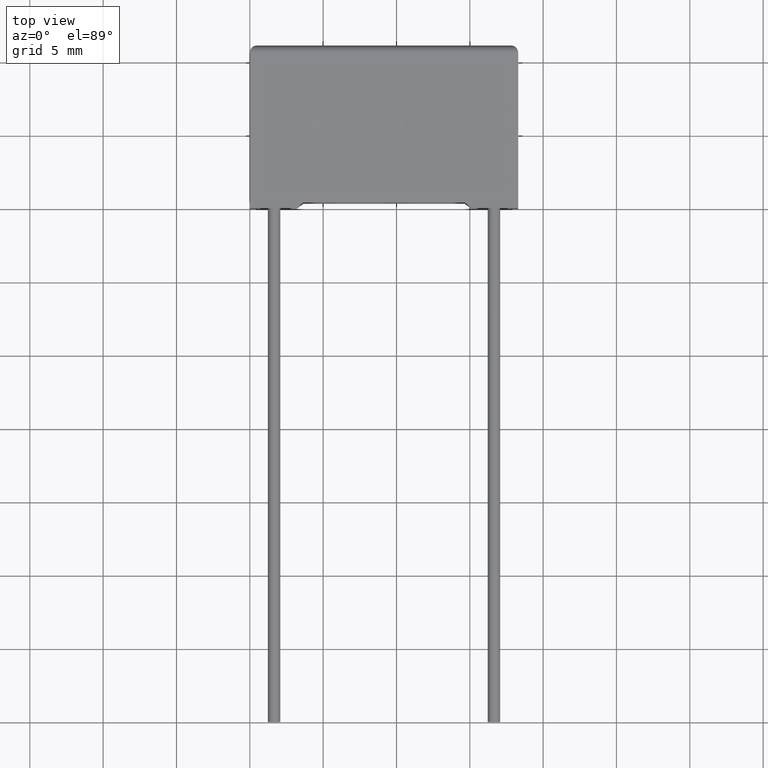
[diagram: clean part render]
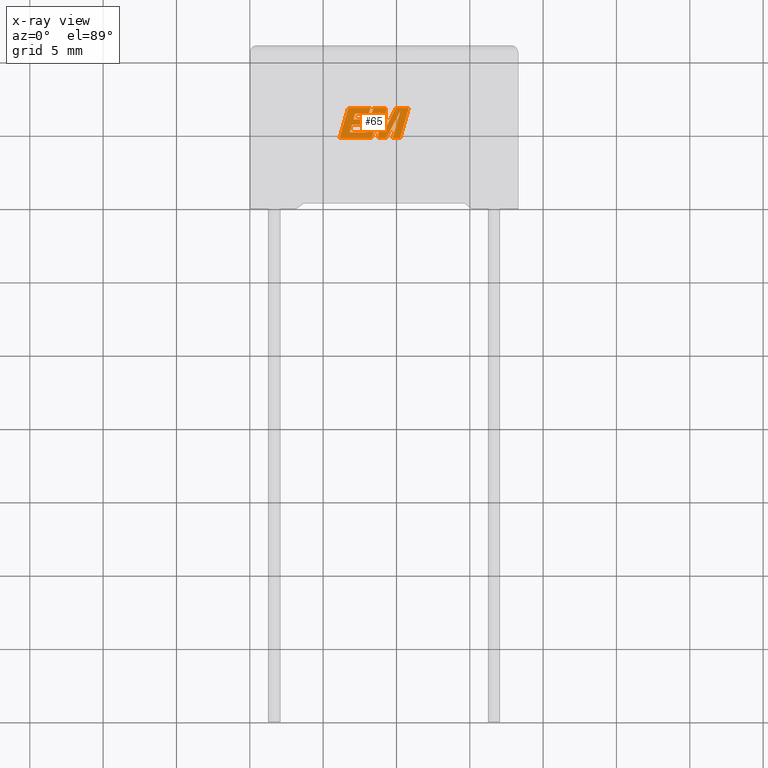
[diagram: x-ray — body ghosted, one internal face saturated and labeled with its STEP entity id]
A machine part, top view, then the same camera in x-ray: the body is ghosted and one INTERNAL B-rep face — a face not visible from any outside direction — is saturated and labeled: STEP entity #65.
In plain terms, the highlighted planar face has unit normal (0, 0, -1).
Its self-contained STEP definition (entity closure, byte-faithful):
#6 = DIRECTION ( 'NONE',  ( -1.000000000000000000, 0.000000000000000000, 0.000000000000000000 ) ) ;
#9 = VERTEX_POINT ( 'NONE', #77 ) ;
#30 = VECTOR ( 'NONE', #3023, 1000.000000000000000 ) ;
#35 = DIRECTION ( 'NONE',  ( 1.000000000000000000, 0.000000000000000000, 0.000000000000000000 ) ) ;
#36 = EDGE_CURVE ( 'NONE', #1682, #1478, #1690, .T. ) ;
#43 = CARTESIAN_POINT ( 'NONE',  ( 9.947927223384223083, 6.826083738474082452, 5.200000000000000178 ) ) ;
#54 = EDGE_CURVE ( 'NONE', #306, #1963, #288, .T. ) ;
#65 = ADVANCED_FACE ( 'NONE', ( #2878 ), #2023, .T. ) ;
#66 = CARTESIAN_POINT ( 'NONE',  ( 8.112293221804671717, 6.435923639161655885, 5.200000000000000178 ) ) ;
#77 = CARTESIAN_POINT ( 'NONE',  ( 9.221647422191399102, 5.361713331603874089, 5.200000000000000178 ) ) ;
#121 = CARTESIAN_POINT ( 'NONE',  ( 8.748873504561524683, 4.776329999999935794, 5.200000000000000178 ) ) ;
#142 = CARTESIAN_POINT ( 'NONE',  ( 7.947244424658283179, 6.054669767896145416, 5.200000000000000178 ) ) ;
#178 = LINE ( 'NONE', #231, #1182 ) ;
#206 = VERTEX_POINT ( 'NONE', #2765 ) ;
#231 = CARTESIAN_POINT ( 'NONE',  ( 8.327195703898469858, 4.776329999999935794, 5.200000000000000178 ) ) ;
#251 = ORIENTED_EDGE ( 'NONE', *, *, #909, .F. ) ;
#252 = LINE ( 'NONE', #1232, #717 ) ;
#288 = LINE ( 'NONE', #1736, #1444 ) ;
#292 = CARTESIAN_POINT ( 'NONE',  ( 7.839011005306755209, 5.675740615357458552, 5.200000000000000178 ) ) ;
#306 = VERTEX_POINT ( 'NONE', #2783 ) ;
#315 = CARTESIAN_POINT ( 'NONE',  ( 6.708817521994718369, 6.826083738474082452, 5.200000000000000178 ) ) ;
#321 = DIRECTION ( 'NONE',  ( 0.2732148821746286371, 0.9619530280415482526, 0.000000000000000000 ) ) ;
#322 = EDGE_CURVE ( 'NONE', #1281, #2127, #677, .T. ) ;
#328 = ORIENTED_EDGE ( 'NONE', *, *, #1053, .F. ) ;
#363 = CARTESIAN_POINT ( 'NONE',  ( 8.112293221804671717, 6.435923639161655885, 5.200000000000000178 ) ) ;
#372 = EDGE_CURVE ( 'NONE', #1933, #2138, #252, .T. ) ;
#377 = LINE ( 'NONE', #1096, #2348 ) ;
#403 = CARTESIAN_POINT ( 'NONE',  ( 6.959357382888240018, 5.675740615357458552, 5.200000000000000178 ) ) ;
#405 = EDGE_CURVE ( 'NONE', #9, #700, #1247, .T. ) ;
#410 = ORIENTED_EDGE ( 'NONE', *, *, #2947, .F. ) ;
#443 = EDGE_CURVE ( 'NONE', #1129, #2150, #519, .T. ) ;
#444 = VERTEX_POINT ( 'NONE', #1483 ) ;
#446 = CARTESIAN_POINT ( 'NONE',  ( 7.178404472403894232, 6.435923639161655885, 5.200000000000000178 ) ) ;
#480 = ORIENTED_EDGE ( 'NONE', *, *, #2207, .F. ) ;
#483 = DIRECTION ( 'NONE',  ( 0.2763139702539113007, 0.9610674221107073922, 0.000000000000000000 ) ) ;
#486 = CARTESIAN_POINT ( 'NONE',  ( 9.300475089700450226, 6.826083738474082452, 5.200000000000000178 ) ) ;
#490 = ORIENTED_EDGE ( 'NONE', *, *, #443, .F. ) ;
#519 = LINE ( 'NONE', #2845, #2821 ) ;
#534 = VECTOR ( 'NONE', #6, 1000.000000000000000 ) ;
#558 = AXIS2_PLACEMENT_3D ( 'NONE', #2471, #2952, #1311 ) ;
#563 = ORIENTED_EDGE ( 'NONE', *, *, #3060, .F. ) ;
#610 = VECTOR ( 'NONE', #2314, 1000.000000000000227 ) ;
#617 = VECTOR ( 'NONE', #321, 1000.000000000000227 ) ;
#635 = VECTOR ( 'NONE', #1730, 999.9999999999998863 ) ;
#675 = CARTESIAN_POINT ( 'NONE',  ( 8.748873504561524683, 4.776329999999935794, 5.200000000000000178 ) ) ;
#677 = LINE ( 'NONE', #874, #610 ) ;
#687 = VECTOR ( 'NONE', #2544, 1000.000000000000227 ) ;
#690 = EDGE_CURVE ( 'NONE', #2558, #9, #996, .T. ) ;
#700 = VERTEX_POINT ( 'NONE', #486 ) ;
#717 = VECTOR ( 'NONE', #786, 1000.000000000000000 ) ;
#738 = CARTESIAN_POINT ( 'NONE',  ( 8.223106891968908982, 6.826083738474082452, 5.200000000000000178 ) ) ;
#771 = VECTOR ( 'NONE', #2712, 1000.000000000000114 ) ;
#786 = DIRECTION ( 'NONE',  ( 0.2746459304916892830, 0.9615454294334481178, 0.000000000000000000 ) ) ;
#789 = ORIENTED_EDGE ( 'NONE', *, *, #2702, .F. ) ;
#837 = LINE ( 'NONE', #66, #617 ) ;
#874 = CARTESIAN_POINT ( 'NONE',  ( 8.427557490167984611, 6.826083738474082452, 5.200000000000000178 ) ) ;
#909 = EDGE_CURVE ( 'NONE', #1560, #1217, #2174, .T. ) ;
#949 = ORIENTED_EDGE ( 'NONE', *, *, #1749, .F. ) ;
#960 = CARTESIAN_POINT ( 'NONE',  ( 10.25761595853780150, 4.776329999999935794, 5.200000000000000178 ) ) ;
#991 = ORIENTED_EDGE ( 'NONE', *, *, #2557, .F. ) ;
#994 = EDGE_CURVE ( 'NONE', #206, #2558, #2661, .T. ) ;
#996 = LINE ( 'NONE', #43, #2091 ) ;
#1001 = CARTESIAN_POINT ( 'NONE',  ( 9.221647422191399102, 5.361713331603874089, 5.200000000000000178 ) ) ;
#1006 = LINE ( 'NONE', #2908, #771 ) ;
#1018 = DIRECTION ( 'NONE',  ( 0.05375259206908576670, 0.9985542843760946141, 0.000000000000000000 ) ) ;
#1034 = EDGE_CURVE ( 'NONE', #1310, #1560, #837, .T. ) ;
#1047 = CARTESIAN_POINT ( 'NONE',  ( 7.962345746009985348, 4.776329999999935794, 5.200000000000000178 ) ) ;
#1053 = EDGE_CURVE ( 'NONE', #444, #1857, #1006, .T. ) ;
#1084 = CARTESIAN_POINT ( 'NONE',  ( 8.427557490167984611, 6.826083738474082452, 5.200000000000000178 ) ) ;
#1087 = ORIENTED_EDGE ( 'NONE', *, *, #372, .F. ) ;
#1096 = CARTESIAN_POINT ( 'NONE',  ( 7.178404472403894232, 6.435923639161655885, 5.200000000000000178 ) ) ;
#1111 = LINE ( 'NONE', #1047, #1684 ) ;
#1129 = VERTEX_POINT ( 'NONE', #2502 ) ;
#1159 = LINE ( 'NONE', #1556, #687 ) ;
#1164 = LINE ( 'NONE', #1887, #1997 ) ;
#1182 = VECTOR ( 'NONE', #2310, 1000.000000000000227 ) ;
#1187 = VECTOR ( 'NONE', #2332, 1000.000000000000000 ) ;
#1210 = LINE ( 'NONE', #2856, #2024 ) ;
#1211 = EDGE_CURVE ( 'NONE', #2127, #444, #1164, .T. ) ;
#1217 = VERTEX_POINT ( 'NONE', #315 ) ;
#1222 = CARTESIAN_POINT ( 'NONE',  ( 8.223106891968908982, 6.826083738474082452, 5.200000000000000178 ) ) ;
#1232 = CARTESIAN_POINT ( 'NONE',  ( 7.839011005306755209, 5.675740615357458552, 5.200000000000000178 ) ) ;
#1247 = LINE ( 'NONE', #1001, #2875 ) ;
#1260 = VERTEX_POINT ( 'NONE', #121 ) ;
#1281 = VERTEX_POINT ( 'NONE', #1084 ) ;
#1310 = VERTEX_POINT ( 'NONE', #363 ) ;
#1311 = DIRECTION ( 'NONE',  ( -1.000000000000000000, 0.000000000000000000, 0.000000000000000000 ) ) ;
#1318 = DIRECTION ( 'NONE',  ( 1.000000000000000000, 0.000000000000000000, 0.000000000000000000 ) ) ;
#1351 = ORIENTED_EDGE ( 'NONE', *, *, #994, .F. ) ;
#1375 = CARTESIAN_POINT ( 'NONE',  ( 6.118980910089239167, 4.776329999999934905, 5.200000000000000178 ) ) ;
#1412 = CARTESIAN_POINT ( 'NONE',  ( 7.947244424658283179, 6.054669767896145416, 5.200000000000000178 ) ) ;
#1435 = DIRECTION ( 'NONE',  ( -1.000000000000000000, 0.000000000000000000, 0.000000000000000000 ) ) ;
#1444 = VECTOR ( 'NONE', #35, 1000.000000000000000 ) ;
#1456 = DIRECTION ( 'NONE',  ( 0.2793947940878294123, 0.9601763114327593884, 0.000000000000000000 ) ) ;
#1478 = VERTEX_POINT ( 'NONE', #1864 ) ;
#1480 = CARTESIAN_POINT ( 'NONE',  ( 9.295319520239521793, 4.776329999999935794, 5.200000000000000178 ) ) ;
#1483 = CARTESIAN_POINT ( 'NONE',  ( 6.814202693454946669, 5.166296892129775387, 5.200000000000000178 ) ) ;
#1521 = DIRECTION ( 'NONE',  ( -0.05596501978069369498, -0.9984327301130239141, 0.000000000000000000 ) ) ;
#1531 = ORIENTED_EDGE ( 'NONE', *, *, #1211, .F. ) ;
#1550 = LINE ( 'NONE', #2963, #2942 ) ;
#1556 = CARTESIAN_POINT ( 'NONE',  ( 10.26329998931311138, 6.609959686718481109, 5.200000000000000178 ) ) ;
#1560 = VERTEX_POINT ( 'NONE', #738 ) ;
#1613 = DIRECTION ( 'NONE',  ( 1.000000000000000000, 0.000000000000000000, 0.000000000000000000 ) ) ;
#1620 = ORIENTED_EDGE ( 'NONE', *, *, #2369, .F. ) ;
#1630 = LINE ( 'NONE', #2808, #30 ) ;
#1679 = LINE ( 'NONE', #2175, #534 ) ;
#1682 = VERTEX_POINT ( 'NONE', #1480 ) ;
#1684 = VECTOR ( 'NONE', #1318, 1000.000000000000000 ) ;
#1690 = LINE ( 'NONE', #2891, #2965 ) ;
#1698 = LINE ( 'NONE', #2136, #635 ) ;
#1710 = ORIENTED_EDGE ( 'NONE', *, *, #690, .F. ) ;
#1720 = DIRECTION ( 'NONE',  ( 0.4668459304955080436, 0.8843386665637680277, 0.000000000000000000 ) ) ;
#1730 = DIRECTION ( 'NONE',  ( -0.2765379750249963853, -0.9610029908221278117, 0.000000000000000000 ) ) ;
#1736 = CARTESIAN_POINT ( 'NONE',  ( 9.736741848859448822, 4.776329999999935794, 5.200000000000000178 ) ) ;
#1749 = EDGE_CURVE ( 'NONE', #2150, #1310, #377, .T. ) ;
#1779 = ORIENTED_EDGE ( 'NONE', *, *, #322, .F. ) ;
#1789 = VERTEX_POINT ( 'NONE', #2250 ) ;
#1857 = VERTEX_POINT ( 'NONE', #403 ) ;
#1862 = VERTEX_POINT ( 'NONE', #1375 ) ;
#1864 = CARTESIAN_POINT ( 'NONE',  ( 10.26329998931311138, 6.609959686718481109, 5.200000000000000178 ) ) ;
#1887 = CARTESIAN_POINT ( 'NONE',  ( 7.950472854412912405, 5.166296892129775387, 5.200000000000000178 ) ) ;
#1904 = DIRECTION ( 'NONE',  ( -1.000000000000000000, 0.000000000000000000, 0.000000000000000000 ) ) ;
#1933 = VERTEX_POINT ( 'NONE', #292 ) ;
#1937 = EDGE_CURVE ( 'NONE', #700, #1281, #1679, .T. ) ;
#1942 = ORIENTED_EDGE ( 'NONE', *, *, #405, .F. ) ;
#1952 = VECTOR ( 'NONE', #1435, 1000.000000000000000 ) ;
#1963 = VERTEX_POINT ( 'NONE', #960 ) ;
#1997 = VECTOR ( 'NONE', #1904, 1000.000000000000000 ) ;
#2023 = PLANE ( 'NONE',  #558 ) ;
#2024 = VECTOR ( 'NONE', #483, 1000.000000000000114 ) ;
#2089 = CARTESIAN_POINT ( 'NONE',  ( 9.947927223384223083, 6.826083738474082452, 5.200000000000000178 ) ) ;
#2091 = VECTOR ( 'NONE', #2629, 1000.000000000000227 ) ;
#2110 = LINE ( 'NONE', #142, #1187 ) ;
#2126 = EDGE_CURVE ( 'NONE', #1478, #306, #1159, .T. ) ;
#2127 = VERTEX_POINT ( 'NONE', #3029 ) ;
#2136 = CARTESIAN_POINT ( 'NONE',  ( 6.708817521994718369, 6.826083738474082452, 5.200000000000000178 ) ) ;
#2138 = VERTEX_POINT ( 'NONE', #1412 ) ;
#2150 = VERTEX_POINT ( 'NONE', #446 ) ;
#2174 = LINE ( 'NONE', #1222, #1952 ) ;
#2175 = CARTESIAN_POINT ( 'NONE',  ( 9.300475089700450226, 6.826083738474082452, 5.200000000000000178 ) ) ;
#2207 = EDGE_CURVE ( 'NONE', #2138, #1129, #2110, .T. ) ;
#2250 = CARTESIAN_POINT ( 'NONE',  ( 8.851161128560534053, 6.601171875984305437, 5.200000000000000178 ) ) ;
#2267 = CARTESIAN_POINT ( 'NONE',  ( 8.327195703898469858, 4.776329999999935794, 5.200000000000000178 ) ) ;
#2287 = ORIENTED_EDGE ( 'NONE', *, *, #3040, .F. ) ;
#2310 = DIRECTION ( 'NONE',  ( 0.2759782365590697228, 0.9611638845408965182, 0.000000000000000000 ) ) ;
#2314 = DIRECTION ( 'NONE',  ( -0.2762517575166416606, -0.9610853065513833560, 0.000000000000000000 ) ) ;
#2332 = DIRECTION ( 'NONE',  ( -1.000000000000000000, 0.000000000000000000, 0.000000000000000000 ) ) ;
#2348 = VECTOR ( 'NONE', #2733, 1000.000000000000000 ) ;
#2369 = EDGE_CURVE ( 'NONE', #1789, #1260, #1550, .T. ) ;
#2394 = ORIENTED_EDGE ( 'NONE', *, *, #2651, .F. ) ;
#2409 = VERTEX_POINT ( 'NONE', #2267 ) ;
#2441 = DIRECTION ( 'NONE',  ( -1.000000000000000000, 0.000000000000000000, 0.000000000000000000 ) ) ;
#2471 = CARTESIAN_POINT ( 'NONE',  ( -0.2224830842431323175, -1.858056502638177898, 5.200000000000000178 ) ) ;
#2502 = CARTESIAN_POINT ( 'NONE',  ( 7.067466152442150040, 6.054669767896145416, 5.200000000000000178 ) ) ;
#2521 = VECTOR ( 'NONE', #2441, 1000.000000000000000 ) ;
#2544 = DIRECTION ( 'NONE',  ( -0.2760118818968579912, -0.9611542233438683525, 0.000000000000000000 ) ) ;
#2557 = EDGE_CURVE ( 'NONE', #1260, #1682, #2780, .T. ) ;
#2558 = VERTEX_POINT ( 'NONE', #2089 ) ;
#2609 = ORIENTED_EDGE ( 'NONE', *, *, #36, .F. ) ;
#2629 = DIRECTION ( 'NONE',  ( -0.4443210308329518243, -0.8958676361826801715, 0.000000000000000000 ) ) ;
#2633 = ORIENTED_EDGE ( 'NONE', *, *, #1034, .F. ) ;
#2651 = EDGE_CURVE ( 'NONE', #1217, #1862, #1698, .T. ) ;
#2661 = LINE ( 'NONE', #2881, #2521 ) ;
#2686 = ORIENTED_EDGE ( 'NONE', *, *, #2126, .F. ) ;
#2702 = EDGE_CURVE ( 'NONE', #1862, #2409, #1111, .T. ) ;
#2712 = DIRECTION ( 'NONE',  ( 0.2740217765954066076, 0.9617234872620595842, 0.000000000000000000 ) ) ;
#2733 = DIRECTION ( 'NONE',  ( 1.000000000000000000, 0.000000000000000000, 0.000000000000000000 ) ) ;
#2765 = CARTESIAN_POINT ( 'NONE',  ( 10.84693527213674891, 6.826083738474082452, 5.200000000000000178 ) ) ;
#2780 = LINE ( 'NONE', #675, #2898 ) ;
#2783 = CARTESIAN_POINT ( 'NONE',  ( 9.736741848859448822, 4.776329999999935794, 5.200000000000000178 ) ) ;
#2808 = CARTESIAN_POINT ( 'NONE',  ( 6.959357382888240018, 5.675740615357458552, 5.200000000000000178 ) ) ;
#2821 = VECTOR ( 'NONE', #1456, 1000.000000000000227 ) ;
#2845 = CARTESIAN_POINT ( 'NONE',  ( 7.067466152442150040, 6.054669767896145416, 5.200000000000000178 ) ) ;
#2856 = CARTESIAN_POINT ( 'NONE',  ( 10.25761595853780150, 4.776329999999935794, 5.200000000000000178 ) ) ;
#2875 = VECTOR ( 'NONE', #1018, 1000.000000000000000 ) ;
#2878 = FACE_OUTER_BOUND ( 'NONE', #2920, .T. ) ;
#2881 = CARTESIAN_POINT ( 'NONE',  ( 10.84693527213674891, 6.826083738474082452, 5.200000000000000178 ) ) ;
#2891 = CARTESIAN_POINT ( 'NONE',  ( 9.295319520239521793, 4.776329999999935794, 5.200000000000000178 ) ) ;
#2898 = VECTOR ( 'NONE', #1613, 1000.000000000000000 ) ;
#2908 = CARTESIAN_POINT ( 'NONE',  ( 6.814202693454946669, 5.166296892129775387, 5.200000000000000178 ) ) ;
#2920 = EDGE_LOOP ( 'NONE', ( #1351, #410, #3012, #2686, #2609, #991, #1620, #563, #789, #2394, #251, #2633, #949, #490, #480, #1087, #2287, #328, #1531, #1779, #3037, #1942, #1710 ) ) ;
#2942 = VECTOR ( 'NONE', #1521, 1000.000000000000227 ) ;
#2947 = EDGE_CURVE ( 'NONE', #1963, #206, #1210, .T. ) ;
#2952 = DIRECTION ( 'NONE',  ( 0.000000000000000000, 0.000000000000000000, -1.000000000000000000 ) ) ;
#2963 = CARTESIAN_POINT ( 'NONE',  ( 8.851161128560534053, 6.601171875984305437, 5.200000000000000178 ) ) ;
#2965 = VECTOR ( 'NONE', #1720, 1000.000000000000000 ) ;
#3012 = ORIENTED_EDGE ( 'NONE', *, *, #54, .F. ) ;
#3023 = DIRECTION ( 'NONE',  ( 1.000000000000000000, 0.000000000000000000, 0.000000000000000000 ) ) ;
#3029 = CARTESIAN_POINT ( 'NONE',  ( 7.950472854412912405, 5.166296892129775387, 5.200000000000000178 ) ) ;
#3037 = ORIENTED_EDGE ( 'NONE', *, *, #1937, .F. ) ;
#3040 = EDGE_CURVE ( 'NONE', #1857, #1933, #1630, .T. ) ;
#3060 = EDGE_CURVE ( 'NONE', #2409, #1789, #178, .T. ) ;